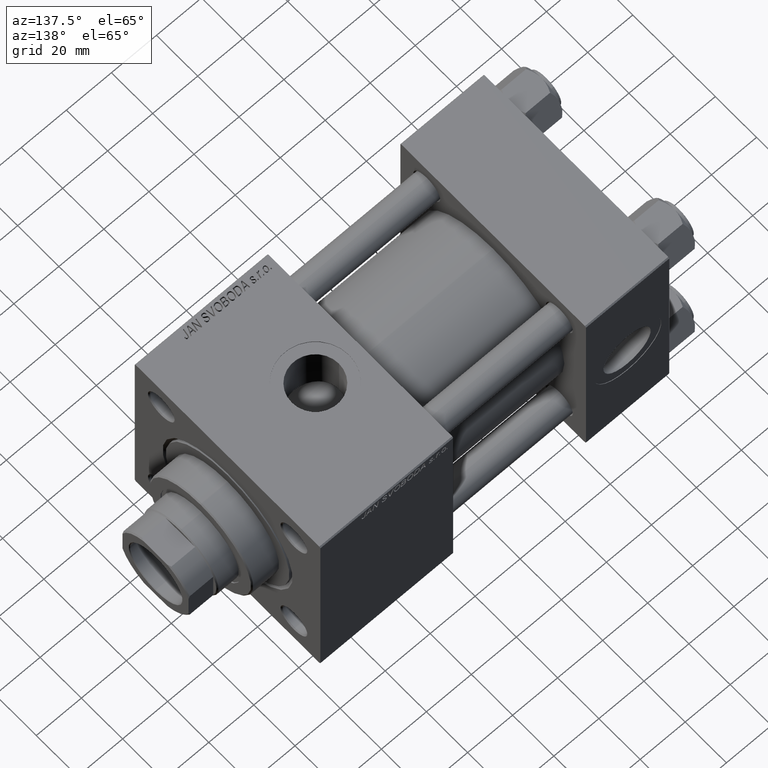
[diagram: clean part render]
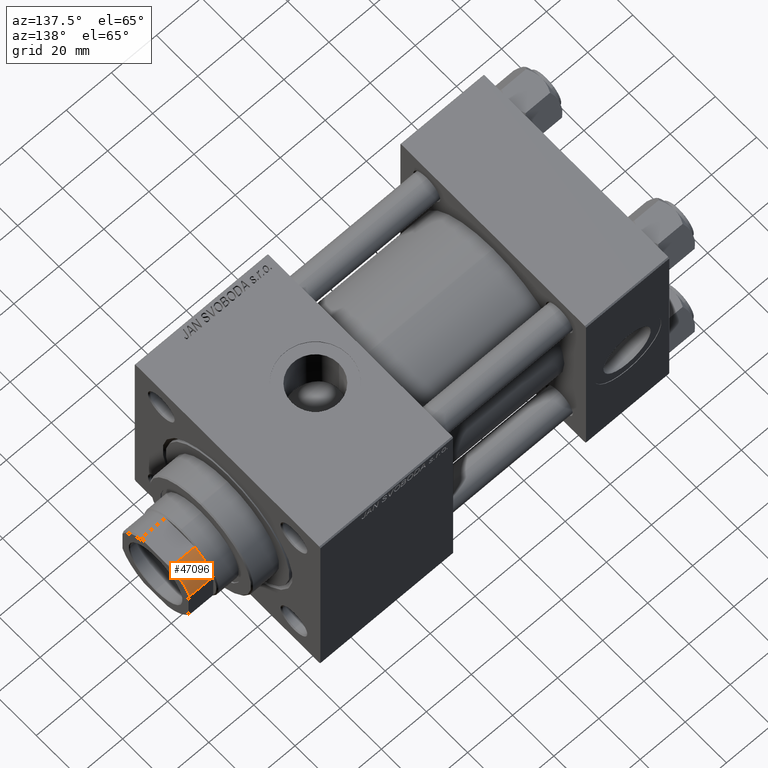
[diagram: same view with one face highlighted and labeled with its STEP entity id]
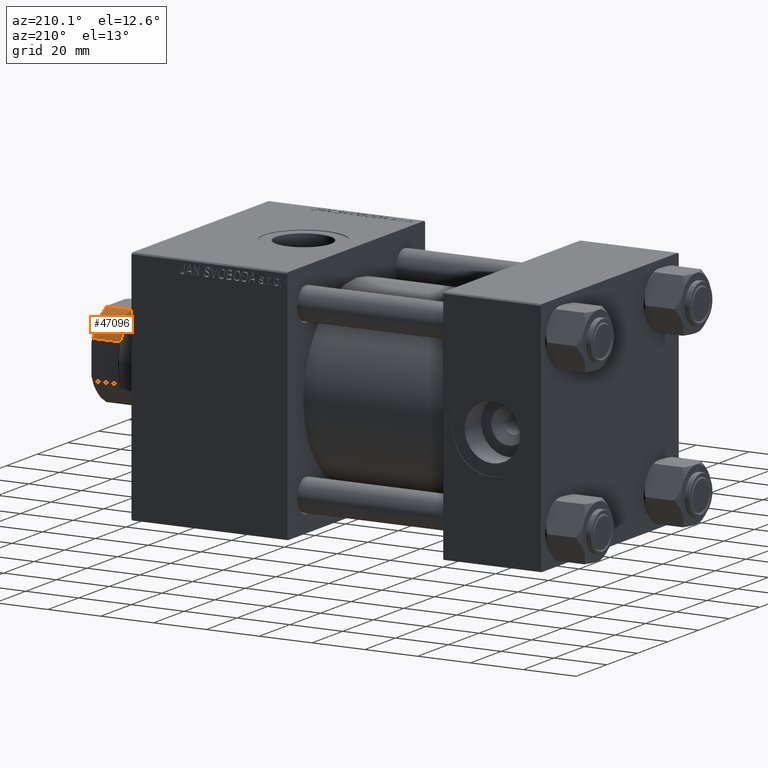
[diagram: same view with one face highlighted and labeled with its STEP entity id]
A machine part, auxiliary view. The second image highlights one B-rep face of the part: STEP entity #47096.
A second angle (auxiliary view) of the same face is appended — the face is thin or edge-on in the first view.
In plain terms, the highlighted cylindrical surface (partial cylindrical patch) has radius 17.5 mm, axis along (1, 0, -0).
Its self-contained STEP definition (entity closure, byte-faithful):
#2197 = CARTESIAN_POINT ( 'NONE',  ( 15.99999999999999645, -7.088723439378925129, -0.001000000000001000089 ) ) ;
#3598 = CIRCLE ( 'NONE', #31950, 17.50000000000000000 ) ;
#3873 = DIRECTION ( 'NONE',  ( -0.000000000000000000, -0.000000000000000000, 1.000000000000000000 ) ) ;
#7678 = CIRCLE ( 'NONE', #24700, 17.50000000000000000 ) ;
#8455 = ORIENTED_EDGE ( 'NONE', *, *, #42798, .F. ) ;
#8861 = DIRECTION ( 'NONE',  ( 0.000000000000000000, 0.000000000000000000, 1.000000000000000000 ) ) ;
#9189 = EDGE_LOOP ( 'NONE', ( #28043, #15385, #8455, #12318 ) ) ;
#11082 = AXIS2_PLACEMENT_3D ( 'NONE', #48085, #25212, #13289 ) ;
#12318 = ORIENTED_EDGE ( 'NONE', *, *, #16408, .T. ) ;
#12667 = CARTESIAN_POINT ( 'NONE',  ( 0.000000000000000000, 0.000000000000000000, 139.0000000000000000 ) ) ;
#13020 = EDGE_CURVE ( 'NONE', #24050, #29483, #3598, .T. ) ;
#13289 = DIRECTION ( 'NONE',  ( 1.000000000000000000, 0.000000000000000000, 0.000000000000000000 ) ) ;
#15385 = ORIENTED_EDGE ( 'NONE', *, *, #13020, .T. ) ;
#15532 = CARTESIAN_POINT ( 'NONE',  ( 7.088723439378915359, -16.00000000000000000, -0.001000000000001000089 ) ) ;
#16408 = EDGE_CURVE ( 'NONE', #23559, #17986, #7678, .T. ) ;
#16529 = CARTESIAN_POINT ( 'NONE',  ( 7.088723439378915359, -16.00000000000000000, 139.0000000000000000 ) ) ;
#17986 = VERTEX_POINT ( 'NONE', #18559 ) ;
#18559 = CARTESIAN_POINT ( 'NONE',  ( 15.99999999999999645, -7.088723439378925129, 139.0000000000000000 ) ) ;
#23559 = VERTEX_POINT ( 'NONE', #16529 ) ;
#24050 = VERTEX_POINT ( 'NONE', #33922 ) ;
#24700 = AXIS2_PLACEMENT_3D ( 'NONE', #12667, #8861, #42644 ) ;
#24996 = VECTOR ( 'NONE', #25538, 1000.000000000000000 ) ;
#25212 = DIRECTION ( 'NONE',  ( -0.000000000000000000, -0.000000000000000000, 1.000000000000000000 ) ) ;
#25538 = DIRECTION ( 'NONE',  ( -0.000000000000000000, -0.000000000000000000, 1.000000000000000000 ) ) ;
#27222 = CARTESIAN_POINT ( 'NONE',  ( 7.088723439378915359, -16.00000000000000000, 149.5000000000000000 ) ) ;
#28043 = ORIENTED_EDGE ( 'NONE', *, *, #29136, .T. ) ;
#29136 = EDGE_CURVE ( 'NONE', #17986, #24050, #41781, .T. ) ;
#29483 = VERTEX_POINT ( 'NONE', #27222 ) ;
#29767 = FACE_OUTER_BOUND ( 'NONE', #9189, .T. ) ;
#31950 = AXIS2_PLACEMENT_3D ( 'NONE', #37202, #36948, #48390 ) ;
#32576 = CYLINDRICAL_SURFACE ( 'NONE', #11082, 17.50000000000000000 ) ;
#33922 = CARTESIAN_POINT ( 'NONE',  ( 15.99999999999999645, -7.088723439378925129, 149.5000000000000000 ) ) ;
#36948 = DIRECTION ( 'NONE',  ( -0.000000000000000000, -0.000000000000000000, -1.000000000000000000 ) ) ;
#37202 = CARTESIAN_POINT ( 'NONE',  ( 0.000000000000000000, 0.000000000000000000, 149.5000000000000000 ) ) ;
#38561 = VECTOR ( 'NONE', #3873, 1000.000000000000000 ) ;
#41781 = LINE ( 'NONE', #2197, #24996 ) ;
#42644 = DIRECTION ( 'NONE',  ( 1.000000000000000000, 0.000000000000000000, 0.000000000000000000 ) ) ;
#42798 = EDGE_CURVE ( 'NONE', #23559, #29483, #43453, .T. ) ;
#43453 = LINE ( 'NONE', #15532, #38561 ) ;
#47096 = ADVANCED_FACE ( 'NONE', ( #29767 ), #32576, .T. ) ;
#48085 = CARTESIAN_POINT ( 'NONE',  ( 0.000000000000000000, 0.000000000000000000, -0.001000000000001000089 ) ) ;
#48390 = DIRECTION ( 'NONE',  ( 1.000000000000000000, 0.000000000000000000, 0.000000000000000000 ) ) ;